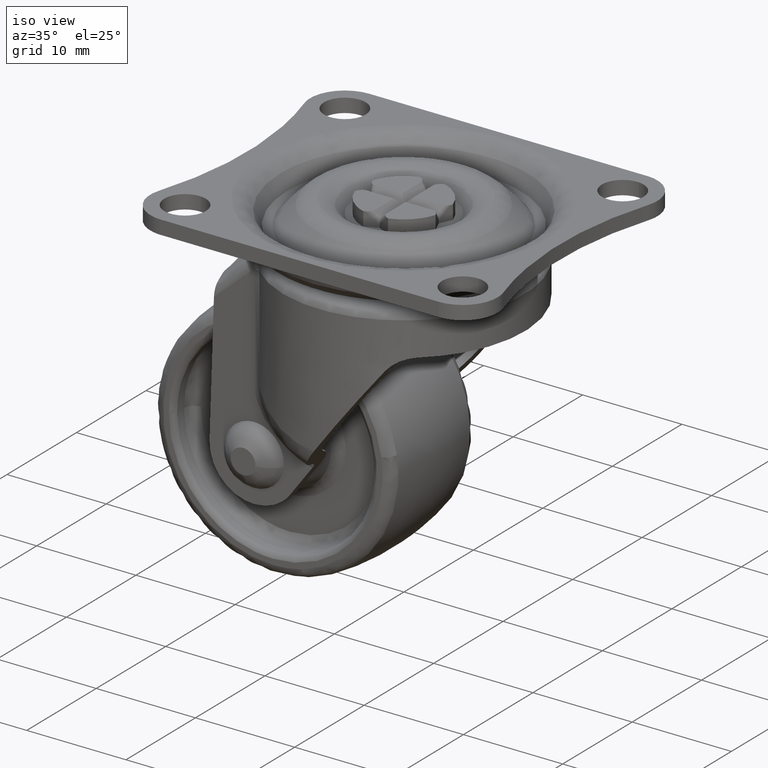
[diagram: clean part render]
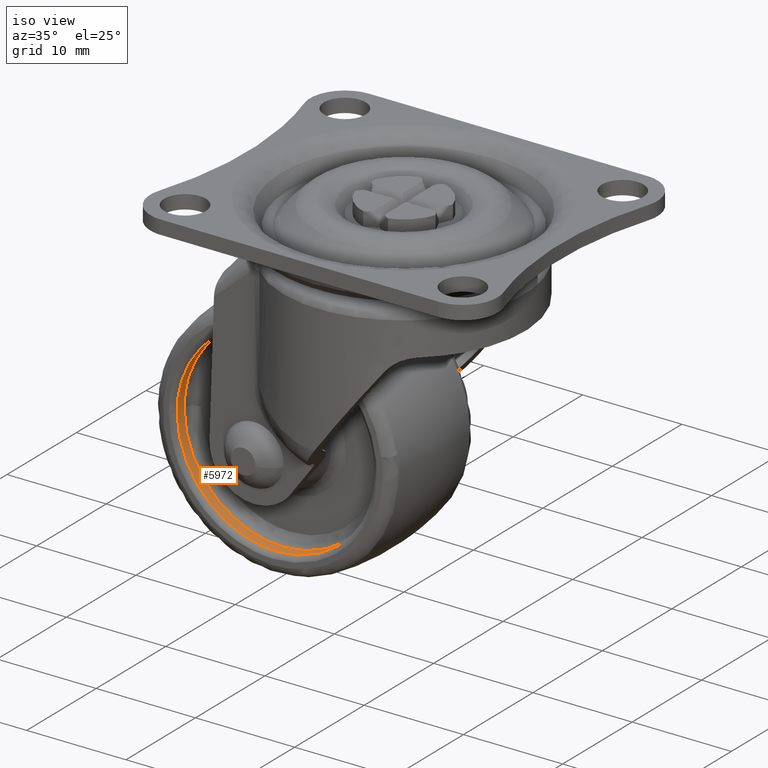
[diagram: same view with one face highlighted and labeled with its STEP entity id]
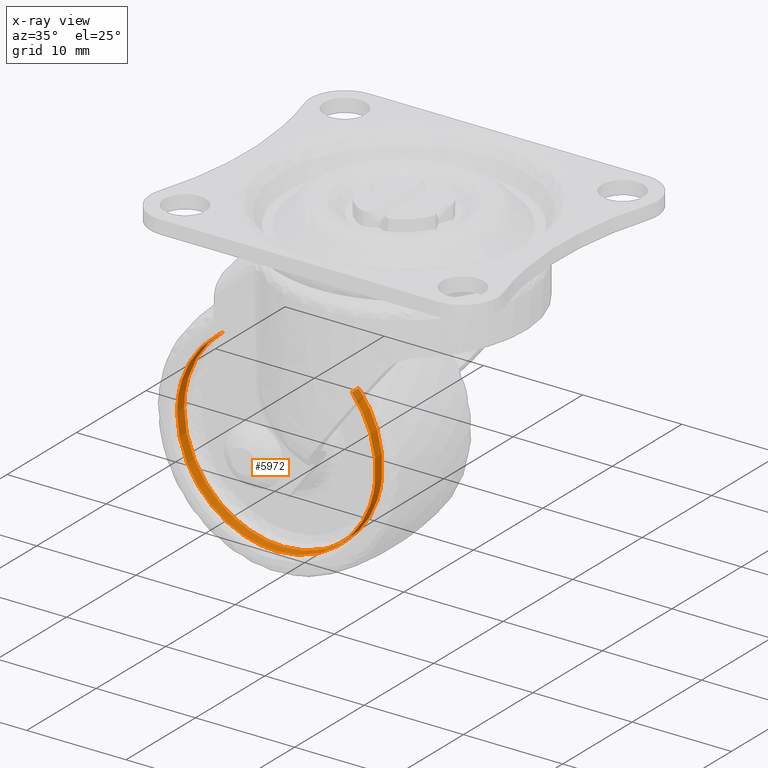
[diagram: x-ray of the same camera — body ghosted, the highlighted face saturated]
A machine part, iso view. The second image highlights one B-rep face of the part: STEP entity #5972.
The next image is the same camera in x-ray: the body ghosted, the highlighted face saturated — about 3% of this face is hidden behind the body in this view.
In plain terms, the highlighted face is a freeform B-spline surface patch.
Its self-contained STEP definition (entity closure, byte-faithful):
#5806=CARTESIAN_POINT('',(-6.048956566429270,-4.474999999905563,7.963047435338569));
#5807=CARTESIAN_POINT('',(-6.276855562872092,-4.474999999905562,7.789928897214875));
#5808=CARTESIAN_POINT('',(-6.494480483301834,-4.474999999905562,7.604059656000307));
#5809=CARTESIAN_POINT('',(-14.098540139302141,-4.474999999905562,1.109579172698473));
#5810=CARTESIAN_POINT('',(-7.604059656000308,-4.474999999905562,-6.494480483301834));
#5811=CARTESIAN_POINT('',(-1.109579172698474,-4.474999999905562,-14.098540139302141));
#5812=CARTESIAN_POINT('',(6.494480483301834,-4.474999999905562,-7.604059656000309));
#5813=CARTESIAN_POINT('',(14.098540139302141,-4.474999999905562,-1.109579172698475));
#5814=CARTESIAN_POINT('',(7.604059656000308,-4.474999999905562,6.494480483301833));
#5815=CARTESIAN_POINT('',(-6.048956566429270,-5.525625000310530,7.963047435338569));
#5816=CARTESIAN_POINT('',(-6.276855562872092,-5.525625000310529,7.789928897214875));
#5817=CARTESIAN_POINT('',(-6.494480483301834,-5.525625000310529,7.604059656000307));
#5818=CARTESIAN_POINT('',(-14.098540139302141,-5.525625000310529,1.109579172698473));
#5819=CARTESIAN_POINT('',(-7.604059656000308,-5.525625000310529,-6.494480483301834));
#5820=CARTESIAN_POINT('',(-1.109579172698474,-5.525625000310529,-14.098540139302141));
#5821=CARTESIAN_POINT('',(6.494480483301834,-5.525625000310529,-7.604059656000309));
#5822=CARTESIAN_POINT('',(14.098540139302141,-5.525625000310529,-1.109579172698475));
#5823=CARTESIAN_POINT('',(7.604059656000308,-5.525625000310529,6.494480483301833));
#5831=(BOUNDED_SURFACE()B_SPLINE_SURFACE(2,1,((#5806,#5815),(#5807,#5816),(#5808,#5817),(#5809,#5818),(#5810,#5819),(#5811,#5820),(#5812,#5821),(#5813,#5822),(#5814,#5823)),.UNSPECIFIED.,.F.,.F.,.U.)B_SPLINE_SURFACE_WITH_KNOTS((3,2,2,2,3),(2,2),(0.0,0.662741699796953,17.231284194720750,33.799826689644547,50.368369184568337),(0.0,1.0),.UNSPECIFIED.)GEOMETRIC_REPRESENTATION_ITEM()RATIONAL_B_SPLINE_SURFACE(((0.977505800795127,0.977505800795127),(0.988284271247462,0.988284271247462),(1.0,1.0),(0.707106781186548,0.707106781186548),(1.0,1.0),(0.707106781186548,0.707106781186548),(1.0,1.0),(0.707106781186548,0.707106781186548),(1.0,1.0)))REPRESENTATION_ITEM('')SURFACE());
#5832=CARTESIAN_POINT('',(-6.048954118146156,-5.500000000061199,7.963049295122636));
#5833=VERTEX_POINT('',#5832);
#5834=CARTESIAN_POINT('',(-10.0,-5.500000000300652,-3.817733E-019));
#5835=VERTEX_POINT('',#5834);
#5836=CARTESIAN_POINT('',(-6.048954118146156,-5.500000000061199,7.963049295122636));
#5837=CARTESIAN_POINT('',(-9.999999999999975,-5.500000000151438,4.961724755708068));
#5838=CARTESIAN_POINT('',(-10.0,-5.500000000300652,-3.817733E-019));
#5846=(BOUNDED_CURVE()B_SPLINE_CURVE(2,(#5836,#5837,#5838),.UNSPECIFIED.,.F.,.U.)B_SPLINE_CURVE_WITH_KNOTS((3,3),(0.604483325125585,0.749999999999999),.UNSPECIFIED.)CURVE()GEOMETRIC_REPRESENTATION_ITEM()RATIONAL_B_SPLINE_CURVE((0.857498628958362,0.829516610820007,0.999999999999998))REPRESENTATION_ITEM(''));
#5847=EDGE_CURVE('',#5833,#5835,#5846,.T.);
#5848=ORIENTED_EDGE('',*,*,#5847,.T.);
#5849=CARTESIAN_POINT('',(0.0,-5.499999999999920,-10.0));
#5850=VERTEX_POINT('',#5849);
#5851=CARTESIAN_POINT('',(-10.0,-5.500000000300652,-3.817733E-019));
#5852=CARTESIAN_POINT('',(-10.000000000000002,-5.499999999999920,-10.000000000000002));
#5853=CARTESIAN_POINT('',(0.0,-5.499999999999920,-10.0));
#5861=(BOUNDED_CURVE()B_SPLINE_CURVE(2,(#5851,#5852,#5853),.UNSPECIFIED.,.F.,.U.)B_SPLINE_CURVE_WITH_KNOTS((3,3),(0.750000000000000,1.0),.UNSPECIFIED.)CURVE()GEOMETRIC_REPRESENTATION_ITEM()RATIONAL_B_SPLINE_CURVE((1.0,0.707106781186548,1.0))REPRESENTATION_ITEM(''));
#5862=EDGE_CURVE('',#5835,#5850,#5861,.T.);
#5863=ORIENTED_EDGE('',*,*,#5862,.T.);
#5864=CARTESIAN_POINT('',(9.933116387849880,-5.500000000291408,-1.154642293278792));
#5865=VERTEX_POINT('',#5864);
#5866=CARTESIAN_POINT('',(0.0,-5.499999999999920,-10.0));
#5867=CARTESIAN_POINT('',(8.904917008254905,-5.499999999999919,-9.999999999999998));
#5868=CARTESIAN_POINT('',(9.933116387849880,-5.500000000291408,-1.154642293278793));
#5876=(BOUNDED_CURVE()B_SPLINE_CURVE(2,(#5866,#5867,#5868),.UNSPECIFIED.,.F.,.U.)B_SPLINE_CURVE_WITH_KNOTS((3,3),(0.0,0.229999999999726),.UNSPECIFIED.)CURVE()GEOMETRIC_REPRESENTATION_ITEM()RATIONAL_B_SPLINE_CURVE((1.0,0.730538238691945,0.956886118190120))REPRESENTATION_ITEM(''));
#5877=EDGE_CURVE('',#5850,#5865,#5876,.T.);
#5878=ORIENTED_EDGE('',*,*,#5877,.T.);
#5879=CARTESIAN_POINT('',(7.604060575571104,-5.499999999999826,6.494479406622459));
#5880=VERTEX_POINT('',#5879);
#5881=CARTESIAN_POINT('',(9.933116387849880,-5.500000000291409,-1.154642293278793));
#5882=CARTESIAN_POINT('',(10.0,-5.499999999999921,-0.579258290986904));
#5883=CARTESIAN_POINT('',(10.0,-5.499999999999920,-8.061993E-016));
#5884=CARTESIAN_POINT('',(9.999999999999998,-5.499999999999919,3.689193966779907));
#5885=CARTESIAN_POINT('',(7.604060575571104,-5.499999999999826,6.494479406622459));
#5893=(BOUNDED_CURVE()B_SPLINE_CURVE(2,(#5881,#5882,#5883,#5884,#5885),.UNSPECIFIED.,.F.,.U.)B_SPLINE_CURVE_WITH_KNOTS((3,2,3),(0.229999999999726,0.250000000000000,0.363143139951707),.UNSPECIFIED.)CURVE()GEOMETRIC_REPRESENTATION_ITEM()RATIONAL_B_SPLINE_CURVE((0.956886118190120,0.976568542494602,1.0,0.867444566211535,0.854871036394970))REPRESENTATION_ITEM(''));
#5894=EDGE_CURVE('',#5865,#5880,#5893,.T.);
#5895=ORIENTED_EDGE('',*,*,#5894,.T.);
#5896=CARTESIAN_POINT('',(7.604060564226026,-4.499999999999915,6.494479419905845));
#5897=VERTEX_POINT('',#5896);
#5898=CARTESIAN_POINT('',(7.604060564226026,-4.499999999999915,6.494479419905845));
#5899=CARTESIAN_POINT('',(7.604060575571104,-5.499999999999826,6.494479406622459));
#5900=QUASI_UNIFORM_CURVE('',1,(#5898,#5899),.UNSPECIFIED.,.F.,.U.);
#5901=EDGE_CURVE('',#5897,#5880,#5900,.T.);
#5902=ORIENTED_EDGE('',*,*,#5901,.F.);
#5903=CARTESIAN_POINT('',(9.933116387849861,-4.499999999915199,-1.154642293278961));
#5904=VERTEX_POINT('',#5903);
#5905=CARTESIAN_POINT('',(9.933116387849861,-4.499999999915199,-1.154642293278961));
#5906=CARTESIAN_POINT('',(10.000000000000002,-4.499999999999916,-0.579258290987075));
#5907=CARTESIAN_POINT('',(10.0,-4.499999999999915,-8.061993E-016));
#5908=CARTESIAN_POINT('',(10.000000000000002,-4.499999999999915,3.689193976703077));
#5909=CARTESIAN_POINT('',(7.604060564226026,-4.499999999999915,6.494479419905845));
#5917=(BOUNDED_CURVE()B_SPLINE_CURVE(2,(#5905,#5906,#5907,#5908,#5909),.UNSPECIFIED.,.F.,.U.)B_SPLINE_CURVE_WITH_KNOTS((3,2,3),(0.229999999999720,0.250000000000000,0.363143140215697),.UNSPECIFIED.)CURVE()GEOMETRIC_REPRESENTATION_ITEM()RATIONAL_B_SPLINE_CURVE((0.956886118190109,0.976568542494596,1.0,0.867444565902251,0.854871036336295))REPRESENTATION_ITEM(''));
#5918=EDGE_CURVE('',#5904,#5897,#5917,.T.);
#5919=ORIENTED_EDGE('',*,*,#5918,.F.);
#5920=CARTESIAN_POINT('',(0.0,-4.499999999999915,-10.0));
#5921=VERTEX_POINT('',#5920);
#5922=CARTESIAN_POINT('',(0.0,-4.499999999999915,-10.0));
#5923=CARTESIAN_POINT('',(8.904917008254593,-4.499999999999914,-10.0));
#5924=CARTESIAN_POINT('',(9.933116387849861,-4.499999999915199,-1.154642293278960));
#5932=(BOUNDED_CURVE()B_SPLINE_CURVE(2,(#5922,#5923,#5924),.UNSPECIFIED.,.F.,.U.)B_SPLINE_CURVE_WITH_KNOTS((3,3),(0.0,0.229999999999720),.UNSPECIFIED.)CURVE()GEOMETRIC_REPRESENTATION_ITEM()RATIONAL_B_SPLINE_CURVE((1.0,0.730538238691952,0.956886118190108))REPRESENTATION_ITEM(''));
#5933=EDGE_CURVE('',#5921,#5904,#5932,.T.);
#5934=ORIENTED_EDGE('',*,*,#5933,.F.);
#5935=CARTESIAN_POINT('',(-9.999999999999996,-4.499999999918838,-1.535272E-018));
#5936=VERTEX_POINT('',#5935);
#5937=CARTESIAN_POINT('',(-9.999999999999996,-4.499999999918838,-1.535272E-018));
#5938=CARTESIAN_POINT('',(-10.000000000000002,-4.499999999999915,-10.000000000000002));
#5939=CARTESIAN_POINT('',(0.0,-4.499999999999915,-10.0));
#5947=(BOUNDED_CURVE()B_SPLINE_CURVE(2,(#5937,#5938,#5939),.UNSPECIFIED.,.F.,.U.)B_SPLINE_CURVE_WITH_KNOTS((3,3),(0.750000000000000,1.0),.UNSPECIFIED.)CURVE()GEOMETRIC_REPRESENTATION_ITEM()RATIONAL_B_SPLINE_CURVE((1.0,0.707106781186548,1.0))REPRESENTATION_ITEM(''));
#5948=EDGE_CURVE('',#5936,#5921,#5947,.T.);
#5949=ORIENTED_EDGE('',*,*,#5948,.F.);
#5950=CARTESIAN_POINT('',(-6.048954148354129,-4.499999999983400,7.963049272175832));
#5951=VERTEX_POINT('',#5950);
#5952=CARTESIAN_POINT('',(-6.048954148354129,-4.499999999983400,7.963049272175832));
#5953=CARTESIAN_POINT('',(-9.999999999999972,-4.499999999959067,4.961724732070902));
#5954=CARTESIAN_POINT('',(-9.999999999999996,-4.499999999918838,-1.535272E-018));
#5962=(BOUNDED_CURVE()B_SPLINE_CURVE(2,(#5952,#5953,#5954),.UNSPECIFIED.,.F.,.U.)B_SPLINE_CURVE_WITH_KNOTS((3,3),(0.604483325700628,0.749999999999999),.UNSPECIFIED.)CURVE()GEOMETRIC_REPRESENTATION_ITEM()RATIONAL_B_SPLINE_CURVE((0.857498628737207,0.829516611493713,0.999999999999998))REPRESENTATION_ITEM(''));
#5963=EDGE_CURVE('',#5951,#5936,#5962,.T.);
#5964=ORIENTED_EDGE('',*,*,#5963,.F.);
#5965=CARTESIAN_POINT('',(-6.048954148354129,-4.499999999983400,7.963049272175832));
#5966=CARTESIAN_POINT('',(-6.048954118146156,-5.500000000061199,7.963049295122636));
#5967=QUASI_UNIFORM_CURVE('',1,(#5965,#5966),.UNSPECIFIED.,.F.,.U.);
#5968=EDGE_CURVE('',#5951,#5833,#5967,.T.);
#5969=ORIENTED_EDGE('',*,*,#5968,.T.);
#5970=EDGE_LOOP('',(#5848,#5863,#5878,#5895,#5902,#5919,#5934,#5949,#5964,#5969));
#5971=FACE_OUTER_BOUND('',#5970,.T.);
#5972=ADVANCED_FACE('',(#5971),#5831,.F.);